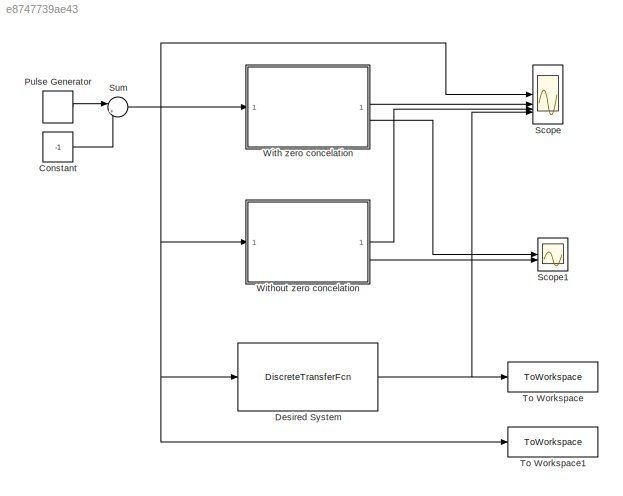
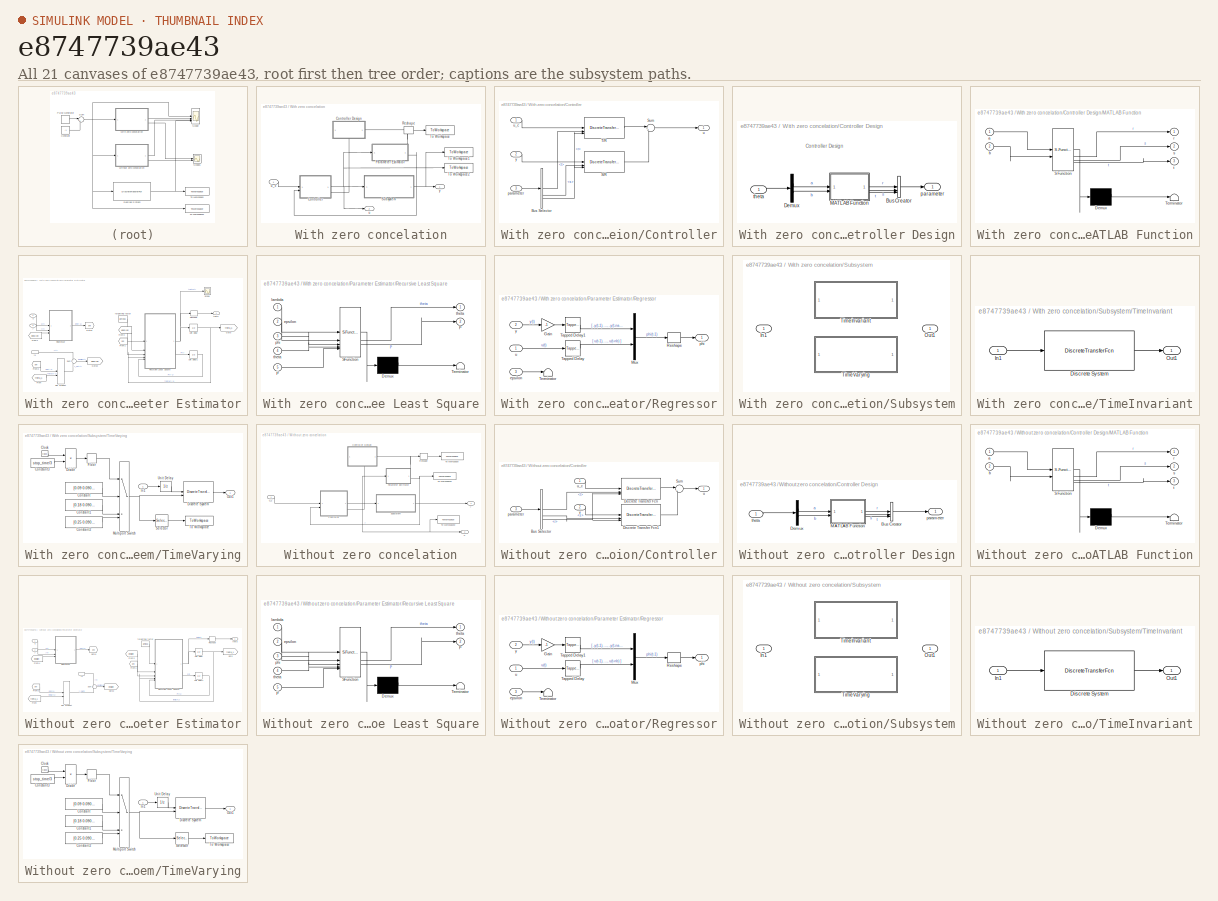
[diagram: thumbnail index - all 21 canvases of the model, root first then tree order]
MODEL slx_e8747739ae43
KIND model
CONFIG AbsTol = auto
CONFIG EnableMultiTasking = off
CONFIG FixedStep = sample_time
CONFIG MaxStep = auto
CONFIG MinStep = auto
CONFIG RelTol = 1e-3
CONFIG SampleTimeConstraint = Unconstrained
CONFIG SolverName = FixedStepAuto
CONFIG StartTime = 0.0
CONFIG StopTime = stop_time
BLOCK [Constant] Constant
  Value = -1
BLOCK [DiscreteTransferFcn] Desired System
  Denominator = [1 -1.3205 0.4966]
  InputPortMap = u0
  Numerator = [0.1761 0]
  SampleTime = sample_time
  a0EqualsOne = on
BLOCK [DiscretePulseGenerator] Pulse Generator
  Amplitude = 2
  Period = 50
  PulseType = Time based
  PulseWidth = 50
BLOCK [Scope] Scope
  Floating = off
  NumInputPorts = 4
  ScopeSpecificationString = Simulink.scopes.TimeScopeBlockCfg('CurrentConfiguration', extmgr.ConfigurationSet(extmgr.Configuration('Core','General UI',true),extmgr.Configuration('Core','Source UI',true),extmgr.Configuration('Sources','WiredSimulink',true),extmgr.Configuration('Visuals','Time Domain',true,'SerializedDisplays',{struct('MinYLimReal','-11.43055','MaxYLimReal','16.72054','YLabelReal','','MinYLimMag','0.00000','Ma...<+1562ch>
BLOCK [Scope] Scope1
  Floating = off
  NumInputPorts = 2
  ScopeSpecificationString = Simulink.scopes.TimeScopeBlockCfg('CurrentConfiguration', extmgr.ConfigurationSet(extmgr.Configuration('Core','General UI',true),extmgr.Configuration('Core','Source UI',true),extmgr.Configuration('Sources','WiredSimulink',true,'DataLoggingVariableName','ScopeData1'),extmgr.Configuration('Visuals','Time Domain',true,'SerializedDisplays',{struct('MinYLimReal','-13.54269','MaxYLimReal','10.08366','YL...<+2119ch>
BLOCK [Sum] Sum
  Inputs = |++
BLOCK [ToWorkspace] To Workspace
  FixptAsFi = on
  MaxDataPoints = inf
  SampleTime = -1
  SaveFormat = Timeseries
  VariableName = Yd
BLOCK [ToWorkspace] To Workspace1
  FixptAsFi = on
  MaxDataPoints = inf
  SampleTime = -1
  SaveFormat = Timeseries
  VariableName = Uc
BLOCK [SubSystem] With zero concelation
BLOCK [SubSystem] With zero concelation/Controller
  PortSchema = {"entries":[{"content":{"sides":[{"content":{"connectorIds":["In1","In2"]},"type":"ConnectorPlacement.EquallySpacedRectSide","uuid":"de166d03-2574-4be9-91e3-f68e474131a4"},{"content":{"connectorIds":["Out1"],"side":"RIGHT"},"type":"ConnectorPlacement.EquallySpacedRectSide","uuid":"3d5de88b-6c54-47ab-9bd7-fa8a92892563"},{"content":{"connectorIds":["In3"],"side":"TOP"},"type":"ConnectorPlacement.Equ...<+251ch>
BLOCK [SubSystem] With zero concelation/Controller Design
  PortSchema = {"entries":[{"content":{"sides":[{"content":{"connectorIds":["Out1"]},"type":"ConnectorPlacement.EquallySpacedRectSide","uuid":"53e8d639-ecea-4436-a4b4-423671f8abf5"},{"content":{"connectorIds":["In1"],"side":"RIGHT"},"type":"ConnectorPlacement.EquallySpacedRectSide","uuid":"db5d5234-b438-48d2-9c76-1224fbffd4fc"},{"content":{"side":"TOP"},"type":"ConnectorPlacement.EquallySpacedRectSide","uuid":"4...<+222ch>
BLOCK [BusCreator] With zero concelation/Controller Design/Bus Creator
  DisplayOption = bar
  InheritFromInputs = on
  Inputs = r,s,t
BLOCK [Demux] With zero concelation/Controller Design/Demux
  Outputs = [n_a, n_b]
BLOCK [SubSystem] With zero concelation/Controller Design/MATLAB Function
  ErrorFcn = Stateflow.Translate.translate
  LibrarySourceBlock = simulink/User-Defined\nFunctions/MATLAB Function
  PermitHierarchicalResolution = ExplicitOnly
  SFBlockType = MATLAB Function
  TreatAsAtomicUnit = on
BLOCK [Demux] With zero concelation/Controller Design/MATLAB Function/ Demux 
  Outputs = 1
BLOCK [S-Function] With zero concelation/Controller Design/MATLAB Function/ SFunction 
  EnableBusSupport = on
  FunctionName = sf_sfun
  PortCounts = [2 4]
  SFcnIsStateOwnerBlock = off
  SFunctionDeploymentMode = off
  Tag = Stateflow S-Function 2
BLOCK [Terminator] With zero concelation/Controller Design/MATLAB Function/ Terminator 
BLOCK [Inport] With zero concelation/Controller Design/MATLAB Function/a
BLOCK [Inport] With zero concelation/Controller Design/MATLAB Function/b
  Port = 2
BLOCK [Outport] With zero concelation/Controller Design/MATLAB Function/r
BLOCK [Outport] With zero concelation/Controller Design/MATLAB Function/s
  Port = 2
BLOCK [Outport] With zero concelation/Controller Design/MATLAB Function/t
  Port = 3
BLOCK [Outport] With zero concelation/Controller Design/parameter
BLOCK [Inport] With zero concelation/Controller Design/theta
BLOCK [BusSelector] With zero concelation/Controller/Bus Selector
  OutputSignals = t,s,r
BLOCK [DiscreteTransferFcn] With zero concelation/Controller/S//R
  DenominatorSource = Input port
  InputPortMap = u0,p1,p3
  NumeratorSource = Input port
  SampleTime = sample_time
  a0EqualsOne = on
BLOCK [Sum] With zero concelation/Controller/Sum
  Inputs = |+-
BLOCK [DiscreteTransferFcn] With zero concelation/Controller/T//R
  DenominatorSource = Input port
  InputPortMap = u0,p1,p3
  NumeratorSource = Input port
  SampleTime = sample_time
  a0EqualsOne = on
BLOCK [Inport] With zero concelation/Controller/parameter
  Port = 3
BLOCK [Outport] With zero concelation/Controller/u
BLOCK [Inport] With zero concelation/Controller/u_c
BLOCK [Inport] With zero concelation/Controller/y
  Port = 2
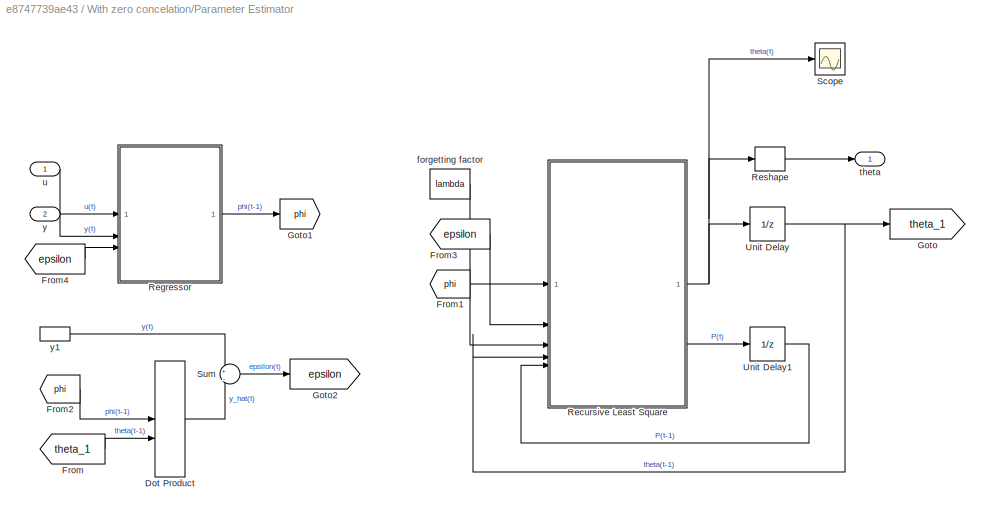
BLOCK [SubSystem] With zero concelation/Parameter Estimator
  PortSchema = {"entries":[{"content":{"sides":[{"content":{"connectorIds":["In1"]},"type":"ConnectorPlacement.EquallySpacedRectSide","uuid":"de166d03-2574-4be9-91e3-f68e474131a4"},{"content":{"connectorIds":["In2"],"side":"RIGHT"},"type":"ConnectorPlacement.EquallySpacedRectSide","uuid":"3d5de88b-6c54-47ab-9bd7-fa8a92892563"},{"content":{"connectorIds":["Out1"],"side":"TOP"},"type":"ConnectorPlacement.EquallySp...<+245ch>
BLOCK [DotProduct] With zero concelation/Parameter Estimator/Dot Product
  OutDataTypeStr = Inherit: Inherit via internal rule
BLOCK [From] With zero concelation/Parameter Estimator/From
  GotoTag = theta_1
BLOCK [From] With zero concelation/Parameter Estimator/From1
  GotoTag = phi
BLOCK [From] With zero concelation/Parameter Estimator/From2
  GotoTag = phi
BLOCK [From] With zero concelation/Parameter Estimator/From3
  GotoTag = epsilon
BLOCK [From] With zero concelation/Parameter Estimator/From4
  GotoTag = epsilon
BLOCK [Goto] With zero concelation/Parameter Estimator/Goto
  GotoTag = theta_1
BLOCK [Goto] With zero concelation/Parameter Estimator/Goto1
  GotoTag = phi
BLOCK [Goto] With zero concelation/Parameter Estimator/Goto2
  GotoTag = epsilon
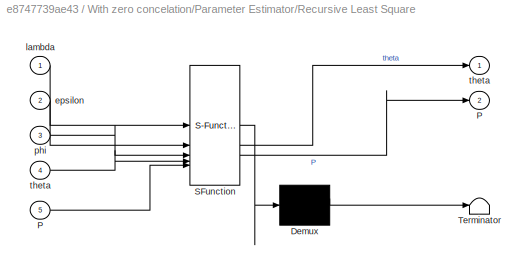
BLOCK [SubSystem] With zero concelation/Parameter Estimator/Recursive Least Square
  ErrorFcn = Stateflow.Translate.translate
  LibrarySourceBlock = simulink/User-Defined\nFunctions/MATLAB Function
  PermitHierarchicalResolution = ExplicitOnly
  SFBlockType = MATLAB Function
  TreatAsAtomicUnit = on
  VariantControl = (default)
BLOCK [Demux] With zero concelation/Parameter Estimator/Recursive Least Square/ Demux 
  Outputs = 1
BLOCK [S-Function] With zero concelation/Parameter Estimator/Recursive Least Square/ SFunction 
  EnableBusSupport = on
  FunctionName = sf_sfun
  Parameters = n
  PortCounts = [5 3]
  SFcnIsStateOwnerBlock = off
  SFunctionDeploymentMode = off
  Tag = Stateflow S-Function 1
BLOCK [Terminator] With zero concelation/Parameter Estimator/Recursive Least Square/ Terminator 
BLOCK [Outport] With zero concelation/Parameter Estimator/Recursive Least Square/P
  Port = 2
BLOCK [Inport] With zero concelation/Parameter Estimator/Recursive Least Square/P 
  Port = 5
BLOCK [Inport] With zero concelation/Parameter Estimator/Recursive Least Square/epsilon
  Port = 2
BLOCK [Inport] With zero concelation/Parameter Estimator/Recursive Least Square/lambda
BLOCK [Inport] With zero concelation/Parameter Estimator/Recursive Least Square/phi
  Port = 3
BLOCK [Outport] With zero concelation/Parameter Estimator/Recursive Least Square/theta
BLOCK [Inport] With zero concelation/Parameter Estimator/Recursive Least Square/theta 
  Port = 4
BLOCK [SubSystem] With zero concelation/Parameter Estimator/Regressor
  VariantControl = (default)
BLOCK [Gain] With zero concelation/Parameter Estimator/Regressor/Gain
  Gain = -1
BLOCK [Mux] With zero concelation/Parameter Estimator/Regressor/Mux
  DisplayOption = bar
  Inputs = 2
BLOCK [Reshape] With zero concelation/Parameter Estimator/Regressor/Reshape
  OutputDimensionality = Column vector (2-D)
BLOCK [Reference] With zero concelation/Parameter Estimator/Regressor/Tapped Delay  REF=simulink/Discrete/Tapped Delay
  SourceBlock = simulink/Discrete/Tapped Delay
  SourceType = Tapped Delay Line
BLOCK [Reference] With zero concelation/Parameter Estimator/Regressor/Tapped Delay1  REF=simulink/Discrete/Tapped Delay
  SourceBlock = simulink/Discrete/Tapped Delay
  SourceType = Tapped Delay Line
BLOCK [Terminator] With zero concelation/Parameter Estimator/Regressor/Terminator
BLOCK [Inport] With zero concelation/Parameter Estimator/Regressor/epsilon
  Port = 3
BLOCK [Outport] With zero concelation/Parameter Estimator/Regressor/phi
BLOCK [Inport] With zero concelation/Parameter Estimator/Regressor/u
BLOCK [Inport] With zero concelation/Parameter Estimator/Regressor/y
  Port = 2
BLOCK [Reshape] With zero concelation/Parameter Estimator/Reshape
  OutputDimensionality = Row vector (2-D)
BLOCK [Scope] With zero concelation/Parameter Estimator/Scope
  Floating = off
  NumInputPorts = 1
  ScopeSpecificationString = Simulink.scopes.TimeScopeBlockCfg('CurrentConfiguration', extmgr.ConfigurationSet(extmgr.Configuration('Core','General UI',true),extmgr.Configuration('Core','Source UI',true),extmgr.Configuration('Sources','WiredSimulink',true,'DataLoggingVariableName','ScopeData1'),extmgr.Configuration('Visuals','Time Domain',true,'SerializedDisplays',{struct('MinYLimReal','-1.88318','MaxYLimReal','0.88438','YLab...<+1543ch>
BLOCK [Sum] With zero concelation/Parameter Estimator/Sum
  Inputs = +|-
BLOCK [UnitDelay] With zero concelation/Parameter Estimator/Unit Delay
  HasFrameUpgradeWarning = on
  InitialCondition = theta0
  SampleTime = sample_time
BLOCK [UnitDelay] With zero concelation/Parameter Estimator/Unit Delay1
  HasFrameUpgradeWarning = on
  InitialCondition = P0
  SampleTime = sample_time
BLOCK [Constant] With zero concelation/Parameter Estimator/forgetting factor
  Value = lambda
BLOCK [Outport] With zero concelation/Parameter Estimator/theta
BLOCK [Inport] With zero concelation/Parameter Estimator/u
BLOCK [Inport] With zero concelation/Parameter Estimator/y
  Port = 2
BLOCK [InportShadow] With zero concelation/Parameter Estimator/y1
  Port = 2
BLOCK [Reshape] With zero concelation/Reshape
BLOCK [SubSystem] With zero concelation/Subsystem
  LabelModeActiveChoice = Choice_1
  Variant = on
  VariantControl = Choice
  VariantControlMode = label
BLOCK [Inport] With zero concelation/Subsystem/In1
BLOCK [Outport] With zero concelation/Subsystem/Out1
BLOCK [SubSystem] With zero concelation/Subsystem/TimeInvariant
  VariantControl = Choice
BLOCK [DiscreteTransferFcn] With zero concelation/Subsystem/TimeInvariant/Discrete System
  Denominator = [1 -1.6065 0.6065]
  InputPortMap = u0
  Numerator = [0 0.1065 0.0902]
  SampleTime = sample_time
  a0EqualsOne = on
BLOCK [Inport] With zero concelation/Subsystem/TimeInvariant/In1
BLOCK [Outport] With zero concelation/Subsystem/TimeInvariant/Out1
BLOCK [SubSystem] With zero concelation/Subsystem/TimeVarying
  VariantControl = Choice_1
BLOCK [Clock] With zero concelation/Subsystem/TimeVarying/Clock
BLOCK [Constant] With zero concelation/Subsystem/TimeVarying/Constant
  Value = [0.09 0.0902 0]
BLOCK [Constant] With zero concelation/Subsystem/TimeVarying/Constant1
  Value = [0.18 0.0902 0]
BLOCK [Constant] With zero concelation/Subsystem/TimeVarying/Constant2
  Value = [0.25 0.0902 0]
BLOCK [Constant] With zero concelation/Subsystem/TimeVarying/Constant3
  Value = stop_time/3
BLOCK [DiscreteTransferFcn] With zero concelation/Subsystem/TimeVarying/Discrete System
  Denominator = [1 -1.6065 0.6065]
  InputPortMap = u0,p1
  Numerator = [0 0.1065 0.0902]
  NumeratorSource = Input port
  SampleTime = sample_time
  a0EqualsOne = on
BLOCK [Product] With zero concelation/Subsystem/TimeVarying/Divide
  Inputs = */
BLOCK [Rounding] With zero concelation/Subsystem/TimeVarying/Floor
BLOCK [Inport] With zero concelation/Subsystem/TimeVarying/In1
BLOCK [MultiPortSwitch] With zero concelation/Subsystem/TimeVarying/Multiport Switch
  DataPortOrder = Zero-based contiguous
  DiagnosticForDefault = None
  InputSameDT = off
  SaturateOnIntegerOverflow = off
  zeroidx = on
BLOCK [Outport] With zero concelation/Subsystem/TimeVarying/Out1
BLOCK [Selector] With zero concelation/Subsystem/TimeVarying/Selector
  IndexOptions = Index vector (dialog)
  Indices = [1]
  InputPortWidth = 3
  OutputSizes = 1
BLOCK [ToWorkspace] With zero concelation/Subsystem/TimeVarying/To Workspace
  FixptAsFi = on
  MaxDataPoints = inf
  SampleTime = -1
  SaveFormat = Timeseries
  VariableName = b1
BLOCK [UnitDelay] With zero concelation/Subsystem/TimeVarying/Unit Delay
  HasFrameUpgradeWarning = on
  SampleTime = sample_time
BLOCK [ToWorkspace] With zero concelation/To Workspace
  FixptAsFi = on
  MaxDataPoints = inf
  SampleTime = -1
  SaveFormat = Timeseries
  VariableName = Theta1
BLOCK [ToWorkspace] With zero concelation/To Workspace1
  FixptAsFi = on
  MaxDataPoints = inf
  SampleTime = -1
  SaveFormat = Timeseries
  VariableName = Y1
BLOCK [ToWorkspace] With zero concelation/To Workspace2
  FixptAsFi = on
  MaxDataPoints = inf
  SampleTime = -1
  SaveFormat = Timeseries
  VariableName = U1
BLOCK [Outport] With zero concelation/u
  Port = 2
BLOCK [Inport] With zero concelation/u_c
BLOCK [Outport] With zero concelation/y
BLOCK [SubSystem] Without zero concelation
BLOCK [SubSystem] Without zero concelation/Controller
  PortSchema = {"entries":[{"content":{"sides":[{"content":{"connectorIds":["In1","In2"]},"type":"ConnectorPlacement.EquallySpacedRectSide","uuid":"de166d03-2574-4be9-91e3-f68e474131a4"},{"content":{"connectorIds":["Out1"],"side":"RIGHT"},"type":"ConnectorPlacement.EquallySpacedRectSide","uuid":"3d5de88b-6c54-47ab-9bd7-fa8a92892563"},{"content":{"connectorIds":["In3"],"side":"TOP"},"type":"ConnectorPlacement.Equ...<+251ch>
BLOCK [SubSystem] Without zero concelation/Controller Design
  PortSchema = {"entries":[{"content":{"sides":[{"content":{"connectorIds":["Out1"]},"type":"ConnectorPlacement.EquallySpacedRectSide","uuid":"53e8d639-ecea-4436-a4b4-423671f8abf5"},{"content":{"connectorIds":["In1"],"side":"RIGHT"},"type":"ConnectorPlacement.EquallySpacedRectSide","uuid":"db5d5234-b438-48d2-9c76-1224fbffd4fc"},{"content":{"side":"TOP"},"type":"ConnectorPlacement.EquallySpacedRectSide","uuid":"4...<+222ch>
BLOCK [BusCreator] Without zero concelation/Controller Design/Bus Creator
  DisplayOption = bar
  InheritFromInputs = on
  Inputs = r,s,t
BLOCK [Demux] Without zero concelation/Controller Design/Demux
  Outputs = [n_a, n_b]
BLOCK [SubSystem] Without zero concelation/Controller Design/MATLAB Function
  ErrorFcn = Stateflow.Translate.translate
  LibrarySourceBlock = simulink/User-Defined\nFunctions/MATLAB Function
  PermitHierarchicalResolution = ExplicitOnly
  SFBlockType = MATLAB Function
  TreatAsAtomicUnit = on
BLOCK [Demux] Without zero concelation/Controller Design/MATLAB Function/ Demux 
  Outputs = 1
BLOCK [S-Function] Without zero concelation/Controller Design/MATLAB Function/ SFunction 
  EnableBusSupport = on
  FunctionName = sf_sfun
  PortCounts = [2 4]
  SFcnIsStateOwnerBlock = off
  SFunctionDeploymentMode = off
  Tag = Stateflow S-Function 3
BLOCK [Terminator] Without zero concelation/Controller Design/MATLAB Function/ Terminator 
BLOCK [Inport] Without zero concelation/Controller Design/MATLAB Function/a
BLOCK [Inport] Without zero concelation/Controller Design/MATLAB Function/b
  Port = 2
BLOCK [Outport] Without zero concelation/Controller Design/MATLAB Function/r
BLOCK [Outport] Without zero concelation/Controller Design/MATLAB Function/s
  Port = 2
BLOCK [Outport] Without zero concelation/Controller Design/MATLAB Function/t
  Port = 3
BLOCK [Outport] Without zero concelation/Controller Design/parameter
BLOCK [Inport] Without zero concelation/Controller Design/theta
BLOCK [BusSelector] Without zero concelation/Controller/Bus Selector
  OutputSignals = t,s,r
BLOCK [DiscreteTransferFcn] Without zero concelation/Controller/Discrete Transfer Fcn
  DenominatorSource = Input port
  InputPortMap = u0,p1,p3
  NumeratorSource = Input port
  SampleTime = sample_time
  a0EqualsOne = on
BLOCK [DiscreteTransferFcn] Without zero concelation/Controller/Discrete Transfer Fcn1
  DenominatorSource = Input port
  InputPortMap = u0,p1,p3
  NumeratorSource = Input port
  SampleTime = sample_time
  a0EqualsOne = on
BLOCK [Sum] Without zero concelation/Controller/Sum
  Inputs = |+-
BLOCK [Inport] Without zero concelation/Controller/parameter
  Port = 3
BLOCK [Outport] Without zero concelation/Controller/u
BLOCK [Inport] Without zero concelation/Controller/u_c
BLOCK [Inport] Without zero concelation/Controller/y
  Port = 2
BLOCK [SubSystem] Without zero concelation/Parameter Estimator
  PortSchema = {"entries":[{"content":{"sides":[{"content":{"connectorIds":["In1"]},"type":"ConnectorPlacement.EquallySpacedRectSide","uuid":"de166d03-2574-4be9-91e3-f68e474131a4"},{"content":{"connectorIds":["In2"],"side":"RIGHT"},"type":"ConnectorPlacement.EquallySpacedRectSide","uuid":"3d5de88b-6c54-47ab-9bd7-fa8a92892563"},{"content":{"connectorIds":["Out1"],"side":"TOP"},"type":"ConnectorPlacement.EquallySp...<+245ch>
BLOCK [DotProduct] Without zero concelation/Parameter Estimator/Dot Product
  OutDataTypeStr = Inherit: Inherit via internal rule
BLOCK [From] Without zero concelation/Parameter Estimator/From
  GotoTag = theta_1
BLOCK [From] Without zero concelation/Parameter Estimator/From1
  GotoTag = phi
BLOCK [From] Without zero concelation/Parameter Estimator/From2
  GotoTag = phi
BLOCK [From] Without zero concelation/Parameter Estimator/From3
  GotoTag = epsilon
BLOCK [From] Without zero concelation/Parameter Estimator/From4
  GotoTag = epsilon
BLOCK [Goto] Without zero concelation/Parameter Estimator/Goto
  GotoTag = theta_1
BLOCK [Goto] Without zero concelation/Parameter Estimator/Goto1
  GotoTag = phi
BLOCK [Goto] Without zero concelation/Parameter Estimator/Goto2
  GotoTag = epsilon
BLOCK [SubSystem] Without zero concelation/Parameter Estimator/Recursive Least Square
  ErrorFcn = Stateflow.Translate.translate
  LibrarySourceBlock = simulink/User-Defined\nFunctions/MATLAB Function
  PermitHierarchicalResolution = ExplicitOnly
  SFBlockType = MATLAB Function
  TreatAsAtomicUnit = on
  VariantControl = (default)
BLOCK [Demux] Without zero concelation/Parameter Estimator/Recursive Least Square/ Demux 
  Outputs = 1
BLOCK [S-Function] Without zero concelation/Parameter Estimator/Recursive Least Square/ SFunction 
  EnableBusSupport = on
  FunctionName = sf_sfun
  Parameters = n
  PortCounts = [5 3]
  SFcnIsStateOwnerBlock = off
  SFunctionDeploymentMode = off
  Tag = Stateflow S-Function 4
BLOCK [Terminator] Without zero concelation/Parameter Estimator/Recursive Least Square/ Terminator 
BLOCK [Outport] Without zero concelation/Parameter Estimator/Recursive Least Square/P
  Port = 2
BLOCK [Inport] Without zero concelation/Parameter Estimator/Recursive Least Square/P 
  Port = 5
BLOCK [Inport] Without zero concelation/Parameter Estimator/Recursive Least Square/epsilon
  Port = 2
BLOCK [Inport] Without zero concelation/Parameter Estimator/Recursive Least Square/lambda
BLOCK [Inport] Without zero concelation/Parameter Estimator/Recursive Least Square/phi
  Port = 3
BLOCK [Outport] Without zero concelation/Parameter Estimator/Recursive Least Square/theta
BLOCK [Inport] Without zero concelation/Parameter Estimator/Recursive Least Square/theta 
  Port = 4
BLOCK [SubSystem] Without zero concelation/Parameter Estimator/Regressor
  VariantControl = (default)
BLOCK [Gain] Without zero concelation/Parameter Estimator/Regressor/Gain
  Gain = -1
BLOCK [Mux] Without zero concelation/Parameter Estimator/Regressor/Mux
  DisplayOption = bar
  Inputs = 2
BLOCK [Reshape] Without zero concelation/Parameter Estimator/Regressor/Reshape
  OutputDimensionality = Column vector (2-D)
BLOCK [Reference] Without zero concelation/Parameter Estimator/Regressor/Tapped Delay  REF=simulink/Discrete/Tapped Delay
  SourceBlock = simulink/Discrete/Tapped Delay
  SourceType = Tapped Delay Line
BLOCK [Reference] Without zero concelation/Parameter Estimator/Regressor/Tapped Delay1  REF=simulink/Discrete/Tapped Delay
  SourceBlock = simulink/Discrete/Tapped Delay
  SourceType = Tapped Delay Line
BLOCK [Terminator] Without zero concelation/Parameter Estimator/Regressor/Terminator
BLOCK [Inport] Without zero concelation/Parameter Estimator/Regressor/epsilon
  Port = 3
BLOCK [Outport] Without zero concelation/Parameter Estimator/Regressor/phi
BLOCK [Inport] Without zero concelation/Parameter Estimator/Regressor/u
BLOCK [Inport] Without zero concelation/Parameter Estimator/Regressor/y
  Port = 2
BLOCK [Reshape] Without zero concelation/Parameter Estimator/Reshape
  OutputDimensionality = Row vector (2-D)
BLOCK [Sum] Without zero concelation/Parameter Estimator/Sum
  Inputs = +|-
BLOCK [UnitDelay] Without zero concelation/Parameter Estimator/Unit Delay
  HasFrameUpgradeWarning = on
  InitialCondition = theta0
  SampleTime = sample_time
BLOCK [UnitDelay] Without zero concelation/Parameter Estimator/Unit Delay1
  HasFrameUpgradeWarning = on
  InitialCondition = P0
  SampleTime = sample_time
BLOCK [Constant] Without zero concelation/Parameter Estimator/forgetting factor
  Value = lambda
BLOCK [Outport] Without zero concelation/Parameter Estimator/theta
BLOCK [Inport] Without zero concelation/Parameter Estimator/u
BLOCK [Inport] Without zero concelation/Parameter Estimator/y
  Port = 2
BLOCK [InportShadow] Without zero concelation/Parameter Estimator/y1
  Port = 2
BLOCK [Reshape] Without zero concelation/Reshape
BLOCK [SubSystem] Without zero concelation/Subsystem
  LabelModeActiveChoice = Choice_1
  Variant = on
  VariantControl = Choice
  VariantControlMode = label
BLOCK [Inport] Without zero concelation/Subsystem/In1
BLOCK [Outport] Without zero concelation/Subsystem/Out1
BLOCK [SubSystem] Without zero concelation/Subsystem/TimeInvariant
  VariantControl = Choice
BLOCK [DiscreteTransferFcn] Without zero concelation/Subsystem/TimeInvariant/Discrete System
  Denominator = [1 -1.6065 0.6065]
  InputPortMap = u0
  Numerator = [0 0.1065 0.0902]
  SampleTime = sample_time
  a0EqualsOne = on
BLOCK [Inport] Without zero concelation/Subsystem/TimeInvariant/In1
BLOCK [Outport] Without zero concelation/Subsystem/TimeInvariant/Out1
BLOCK [SubSystem] Without zero concelation/Subsystem/TimeVarying
  VariantControl = Choice_1
BLOCK [Clock] Without zero concelation/Subsystem/TimeVarying/Clock
BLOCK [Constant] Without zero concelation/Subsystem/TimeVarying/Constant
  Value = [0.09 0.0902 0]
BLOCK [Constant] Without zero concelation/Subsystem/TimeVarying/Constant1
  Value = [0.18 0.0902 0]
BLOCK [Constant] Without zero concelation/Subsystem/TimeVarying/Constant2
  Value = [0.25 0.0902 0]
BLOCK [Constant] Without zero concelation/Subsystem/TimeVarying/Constant3
  Value = stop_time/3
BLOCK [DiscreteTransferFcn] Without zero concelation/Subsystem/TimeVarying/Discrete System
  Denominator = [1 -1.6065 0.6065]
  InputPortMap = u0,p1
  Numerator = [0 0.1065 0.0902]
  NumeratorSource = Input port
  SampleTime = sample_time
  a0EqualsOne = on
BLOCK [Product] Without zero concelation/Subsystem/TimeVarying/Divide
  Inputs = */
BLOCK [Rounding] Without zero concelation/Subsystem/TimeVarying/Floor
BLOCK [Inport] Without zero concelation/Subsystem/TimeVarying/In1
BLOCK [MultiPortSwitch] Without zero concelation/Subsystem/TimeVarying/Multiport Switch
  DataPortOrder = Zero-based contiguous
  DiagnosticForDefault = None
  InputSameDT = off
  SaturateOnIntegerOverflow = off
  zeroidx = on
BLOCK [Outport] Without zero concelation/Subsystem/TimeVarying/Out1
BLOCK [Selector] Without zero concelation/Subsystem/TimeVarying/Selector
  IndexOptions = Index vector (dialog)
  Indices = [1]
  InputPortWidth = 3
  OutputSizes = 1
BLOCK [ToWorkspace] Without zero concelation/Subsystem/TimeVarying/To Workspace
  FixptAsFi = on
  MaxDataPoints = inf
  SampleTime = -1
  SaveFormat = Timeseries
  VariableName = b2
BLOCK [UnitDelay] Without zero concelation/Subsystem/TimeVarying/Unit Delay
  HasFrameUpgradeWarning = on
  SampleTime = sample_time
BLOCK [ToWorkspace] Without zero concelation/To Workspace
  FixptAsFi = on
  MaxDataPoints = inf
  SampleTime = -1
  SaveFormat = Timeseries
  VariableName = Theta2
BLOCK [ToWorkspace] Without zero concelation/To Workspace1
  FixptAsFi = on
  MaxDataPoints = inf
  SampleTime = -1
  SaveFormat = Timeseries
  VariableName = Y2
BLOCK [ToWorkspace] Without zero concelation/To Workspace2
  FixptAsFi = on
  MaxDataPoints = inf
  SampleTime = -1
  SaveFormat = Timeseries
  VariableName = U2
BLOCK [Outport] Without zero concelation/u
  Port = 2
BLOCK [Inport] Without zero concelation/u_c
BLOCK [Outport] Without zero concelation/y
ANNOTATION With zero concelation/Controller Design: Controller Design
LINE Constant:1 -> Sum:2
NET Desired System:1 -> Scope:4, To Workspace:1
LINE Pulse Generator:1 -> Sum:1
NET Sum:1 -> Desired System:1, Scope:1, To Workspace1:1, With zero concelation:1, Without zero concelation:1
LINE With zero concelation/Controller Design/Bus Creator:1 -> With zero concelation/Controller Design/parameter:1
LINE With zero concelation/Controller Design/Demux:1 -> With zero concelation/Controller Design/MATLAB Function:1
LINE With zero concelation/Controller Design/Demux:2 -> With zero concelation/Controller Design/MATLAB Function:2
LINE With zero concelation/Controller Design/MATLAB Function:1 -> With zero concelation/Controller Design/Bus Creator:1
LINE With zero concelation/Controller Design/MATLAB Function:2 -> With zero concelation/Controller Design/Bus Creator:2
LINE With zero concelation/Controller Design/MATLAB Function:3 -> With zero concelation/Controller Design/Bus Creator:3
LINE With zero concelation/Controller Design/theta:1 -> With zero concelation/Controller Design/Demux:1
LINE With zero concelation/Controller Design:1 -> With zero concelation/Controller:3
LINE With zero concelation/Controller/Bus Selector:1 -> With zero concelation/Controller/T//R:2
LINE With zero concelation/Controller/Bus Selector:2 -> With zero concelation/Controller/S//R:2
NET With zero concelation/Controller/Bus Selector:3 -> With zero concelation/Controller/S//R:3, With zero concelation/Controller/T//R:3
LINE With zero concelation/Controller/S//R:1 -> With zero concelation/Controller/Sum:2
LINE With zero concelation/Controller/Sum:1 -> With zero concelation/Controller/u:1
LINE With zero concelation/Controller/T//R:1 -> With zero concelation/Controller/Sum:1
LINE With zero concelation/Controller/parameter:1 -> With zero concelation/Controller/Bus Selector:1
LINE With zero concelation/Controller/u_c:1 -> With zero concelation/Controller/T//R:1
LINE With zero concelation/Controller/y:1 -> With zero concelation/Controller/S//R:1
NET With zero concelation/Controller:1 -> With zero concelation/Parameter Estimator:1, With zero concelation/Subsystem:1, With zero concelation/To Workspace2:1, With zero concelation/u:1
LINE With zero concelation/Parameter Estimator/Dot Product:1 -> With zero concelation/Parameter Estimator/Sum:2
LINE With zero concelation/Parameter Estimator/From1:1 -> With zero concelation/Parameter Estimator/Recursive Least Square:3
LINE With zero concelation/Parameter Estimator/From2:1 -> With zero concelation/Parameter Estimator/Dot Product:1
LINE With zero concelation/Parameter Estimator/From3:1 -> With zero concelation/Parameter Estimator/Recursive Least Square:2
LINE With zero concelation/Parameter Estimator/From4:1 -> With zero concelation/Parameter Estimator/Regressor:3
LINE With zero concelation/Parameter Estimator/From:1 -> With zero concelation/Parameter Estimator/Dot Product:2
NET With zero concelation/Parameter Estimator/Recursive Least Square:1 -> With zero concelation/Parameter Estimator/Reshape:1, With zero concelation/Parameter Estimator/Scope:1, With zero concelation/Parameter Estimator/Unit Delay:1
LINE With zero concelation/Parameter Estimator/Recursive Least Square:2 -> With zero concelation/Parameter Estimator/Unit Delay1:1
LINE With zero concelation/Parameter Estimator/Regressor/Gain:1 -> With zero concelation/Parameter Estimator/Regressor/Tapped Delay1:1
LINE With zero concelation/Parameter Estimator/Regressor/Mux:1 -> With zero concelation/Parameter Estimator/Regressor/Reshape:1
LINE With zero concelation/Parameter Estimator/Regressor/Reshape:1 -> With zero concelation/Parameter Estimator/Regressor/phi:1
LINE With zero concelation/Parameter Estimator/Regressor/Tapped Delay1:1 -> With zero concelation/Parameter Estimator/Regressor/Mux:1
LINE With zero concelation/Parameter Estimator/Regressor/Tapped Delay:1 -> With zero concelation/Parameter Estimator/Regressor/Mux:2
LINE With zero concelation/Parameter Estimator/Regressor/epsilon:1 -> With zero concelation/Parameter Estimator/Regressor/Terminator:1
LINE With zero concelation/Parameter Estimator/Regressor/u:1 -> With zero concelation/Parameter Estimator/Regressor/Tapped Delay:1
LINE With zero concelation/Parameter Estimator/Regressor/y:1 -> With zero concelation/Parameter Estimator/Regressor/Gain:1
LINE With zero concelation/Parameter Estimator/Regressor:1 -> With zero concelation/Parameter Estimator/Goto1:1
LINE With zero concelation/Parameter Estimator/Reshape:1 -> With zero concelation/Parameter Estimator/theta:1
LINE With zero concelation/Parameter Estimator/Sum:1 -> With zero concelation/Parameter Estimator/Goto2:1
LINE With zero concelation/Parameter Estimator/Unit Delay1:1 -> With zero concelation/Parameter Estimator/Recursive Least Square:5
NET With zero concelation/Parameter Estimator/Unit Delay:1 -> With zero concelation/Parameter Estimator/Goto:1, With zero concelation/Parameter Estimator/Recursive Least Square:4
LINE With zero concelation/Parameter Estimator/forgetting factor:1 -> With zero concelation/Parameter Estimator/Recursive Least Square:1
LINE With zero concelation/Parameter Estimator/u:1 -> With zero concelation/Parameter Estimator/Regressor:1
LINE With zero concelation/Parameter Estimator/y1:1 -> With zero concelation/Parameter Estimator/Sum:1
LINE With zero concelation/Parameter Estimator/y:1 -> With zero concelation/Parameter Estimator/Regressor:2
NET With zero concelation/Parameter Estimator:1 -> With zero concelation/Controller Design:1, With zero concelation/Reshape:1
LINE With zero concelation/Reshape:1 -> With zero concelation/To Workspace:1
LINE With zero concelation/Subsystem/TimeInvariant/Discrete System:1 -> With zero concelation/Subsystem/TimeInvariant/Out1:1
LINE With zero concelation/Subsystem/TimeInvariant/In1:1 -> With zero concelation/Subsystem/TimeInvariant/Discrete System:1
LINE With zero concelation/Subsystem/TimeVarying/Clock:1 -> With zero concelation/Subsystem/TimeVarying/Divide:1
LINE With zero concelation/Subsystem/TimeVarying/Constant1:1 -> With zero concelation/Subsystem/TimeVarying/Multiport Switch:3
LINE With zero concelation/Subsystem/TimeVarying/Constant2:1 -> With zero concelation/Subsystem/TimeVarying/Multiport Switch:4
LINE With zero concelation/Subsystem/TimeVarying/Constant3:1 -> With zero concelation/Subsystem/TimeVarying/Divide:2
LINE With zero concelation/Subsystem/TimeVarying/Constant:1 -> With zero concelation/Subsystem/TimeVarying/Multiport Switch:2
LINE With zero concelation/Subsystem/TimeVarying/Discrete System:1 -> With zero concelation/Subsystem/TimeVarying/Out1:1
LINE With zero concelation/Subsystem/TimeVarying/Divide:1 -> With zero concelation/Subsystem/TimeVarying/Floor:1
LINE With zero concelation/Subsystem/TimeVarying/Floor:1 -> With zero concelation/Subsystem/TimeVarying/Multiport Switch:1
LINE With zero concelation/Subsystem/TimeVarying/In1:1 -> With zero concelation/Subsystem/TimeVarying/Unit Delay:1
NET With zero concelation/Subsystem/TimeVarying/Multiport Switch:1 -> With zero concelation/Subsystem/TimeVarying/Discrete System:2, With zero concelation/Subsystem/TimeVarying/Selector:1
LINE With zero concelation/Subsystem/TimeVarying/Selector:1 -> With zero concelation/Subsystem/TimeVarying/To Workspace:1
LINE With zero concelation/Subsystem/TimeVarying/Unit Delay:1 -> With zero concelation/Subsystem/TimeVarying/Discrete System:1
NET With zero concelation/Subsystem:1 -> With zero concelation/Controller:2, With zero concelation/Parameter Estimator:2, With zero concelation/To Workspace1:1, With zero concelation/y:1
LINE With zero concelation/u_c:1 -> With zero concelation/Controller:1
LINE With zero concelation:1 -> Scope:2
LINE With zero concelation:2 -> Scope1:1
LINE Without zero concelation/Controller Design/Bus Creator:1 -> Without zero concelation/Controller Design/parameter:1
LINE Without zero concelation/Controller Design/Demux:1 -> Without zero concelation/Controller Design/MATLAB Function:1
LINE Without zero concelation/Controller Design/Demux:2 -> Without zero concelation/Controller Design/MATLAB Function:2
LINE Without zero concelation/Controller Design/MATLAB Function:1 -> Without zero concelation/Controller Design/Bus Creator:1
LINE Without zero concelation/Controller Design/MATLAB Function:2 -> Without zero concelation/Controller Design/Bus Creator:2
LINE Without zero concelation/Controller Design/MATLAB Function:3 -> Without zero concelation/Controller Design/Bus Creator:3
LINE Without zero concelation/Controller Design/theta:1 -> Without zero concelation/Controller Design/Demux:1
LINE Without zero concelation/Controller Design:1 -> Without zero concelation/Controller:3
LINE Without zero concelation/Controller/Bus Selector:1 -> Without zero concelation/Controller/Discrete Transfer Fcn:2
LINE Without zero concelation/Controller/Bus Selector:2 -> Without zero concelation/Controller/Discrete Transfer Fcn1:2
NET Without zero concelation/Controller/Bus Selector:3 -> Without zero concelation/Controller/Discrete Transfer Fcn1:3, Without zero concelation/Controller/Discrete Transfer Fcn:3
LINE Without zero concelation/Controller/Discrete Transfer Fcn1:1 -> Without zero concelation/Controller/Sum:2
LINE Without zero concelation/Controller/Discrete Transfer Fcn:1 -> Without zero concelation/Controller/Sum:1
LINE Without zero concelation/Controller/Sum:1 -> Without zero concelation/Controller/u:1
LINE Without zero concelation/Controller/parameter:1 -> Without zero concelation/Controller/Bus Selector:1
LINE Without zero concelation/Controller/u_c:1 -> Without zero concelation/Controller/Discrete Transfer Fcn:1
LINE Without zero concelation/Controller/y:1 -> Without zero concelation/Controller/Discrete Transfer Fcn1:1
NET Without zero concelation/Controller:1 -> Without zero concelation/Parameter Estimator:1, Without zero concelation/Subsystem:1, Without zero concelation/To Workspace2:1, Without zero concelation/u:1
LINE Without zero concelation/Parameter Estimator/Dot Product:1 -> Without zero concelation/Parameter Estimator/Sum:2
LINE Without zero concelation/Parameter Estimator/From1:1 -> Without zero concelation/Parameter Estimator/Recursive Least Square:3
LINE Without zero concelation/Parameter Estimator/From2:1 -> Without zero concelation/Parameter Estimator/Dot Product:1
LINE Without zero concelation/Parameter Estimator/From3:1 -> Without zero concelation/Parameter Estimator/Recursive Least Square:2
LINE Without zero concelation/Parameter Estimator/From4:1 -> Without zero concelation/Parameter Estimator/Regressor:3
LINE Without zero concelation/Parameter Estimator/From:1 -> Without zero concelation/Parameter Estimator/Dot Product:2
NET Without zero concelation/Parameter Estimator/Recursive Least Square:1 -> Without zero concelation/Parameter Estimator/Reshape:1, Without zero concelation/Parameter Estimator/Unit Delay:1
LINE Without zero concelation/Parameter Estimator/Recursive Least Square:2 -> Without zero concelation/Parameter Estimator/Unit Delay1:1
LINE Without zero concelation/Parameter Estimator/Regressor/Gain:1 -> Without zero concelation/Parameter Estimator/Regressor/Tapped Delay1:1
LINE Without zero concelation/Parameter Estimator/Regressor/Mux:1 -> Without zero concelation/Parameter Estimator/Regressor/Reshape:1
LINE Without zero concelation/Parameter Estimator/Regressor/Reshape:1 -> Without zero concelation/Parameter Estimator/Regressor/phi:1
LINE Without zero concelation/Parameter Estimator/Regressor/Tapped Delay1:1 -> Without zero concelation/Parameter Estimator/Regressor/Mux:1
LINE Without zero concelation/Parameter Estimator/Regressor/Tapped Delay:1 -> Without zero concelation/Parameter Estimator/Regressor/Mux:2
LINE Without zero concelation/Parameter Estimator/Regressor/epsilon:1 -> Without zero concelation/Parameter Estimator/Regressor/Terminator:1
LINE Without zero concelation/Parameter Estimator/Regressor/u:1 -> Without zero concelation/Parameter Estimator/Regressor/Tapped Delay:1
LINE Without zero concelation/Parameter Estimator/Regressor/y:1 -> Without zero concelation/Parameter Estimator/Regressor/Gain:1
LINE Without zero concelation/Parameter Estimator/Regressor:1 -> Without zero concelation/Parameter Estimator/Goto1:1
LINE Without zero concelation/Parameter Estimator/Reshape:1 -> Without zero concelation/Parameter Estimator/theta:1
LINE Without zero concelation/Parameter Estimator/Sum:1 -> Without zero concelation/Parameter Estimator/Goto2:1
LINE Without zero concelation/Parameter Estimator/Unit Delay1:1 -> Without zero concelation/Parameter Estimator/Recursive Least Square:5
NET Without zero concelation/Parameter Estimator/Unit Delay:1 -> Without zero concelation/Parameter Estimator/Goto:1, Without zero concelation/Parameter Estimator/Recursive Least Square:4
LINE Without zero concelation/Parameter Estimator/forgetting factor:1 -> Without zero concelation/Parameter Estimator/Recursive Least Square:1
LINE Without zero concelation/Parameter Estimator/u:1 -> Without zero concelation/Parameter Estimator/Regressor:1
LINE Without zero concelation/Parameter Estimator/y1:1 -> Without zero concelation/Parameter Estimator/Sum:1
LINE Without zero concelation/Parameter Estimator/y:1 -> Without zero concelation/Parameter Estimator/Regressor:2
NET Without zero concelation/Parameter Estimator:1 -> Without zero concelation/Controller Design:1, Without zero concelation/Reshape:1
LINE Without zero concelation/Reshape:1 -> Without zero concelation/To Workspace:1
LINE Without zero concelation/Subsystem/TimeInvariant/Discrete System:1 -> Without zero concelation/Subsystem/TimeInvariant/Out1:1
LINE Without zero concelation/Subsystem/TimeInvariant/In1:1 -> Without zero concelation/Subsystem/TimeInvariant/Discrete System:1
LINE Without zero concelation/Subsystem/TimeVarying/Clock:1 -> Without zero concelation/Subsystem/TimeVarying/Divide:1
LINE Without zero concelation/Subsystem/TimeVarying/Constant1:1 -> Without zero concelation/Subsystem/TimeVarying/Multiport Switch:3
LINE Without zero concelation/Subsystem/TimeVarying/Constant2:1 -> Without zero concelation/Subsystem/TimeVarying/Multiport Switch:4
LINE Without zero concelation/Subsystem/TimeVarying/Constant3:1 -> Without zero concelation/Subsystem/TimeVarying/Divide:2
LINE Without zero concelation/Subsystem/TimeVarying/Constant:1 -> Without zero concelation/Subsystem/TimeVarying/Multiport Switch:2
LINE Without zero concelation/Subsystem/TimeVarying/Discrete System:1 -> Without zero concelation/Subsystem/TimeVarying/Out1:1
LINE Without zero concelation/Subsystem/TimeVarying/Divide:1 -> Without zero concelation/Subsystem/TimeVarying/Floor:1
LINE Without zero concelation/Subsystem/TimeVarying/Floor:1 -> Without zero concelation/Subsystem/TimeVarying/Multiport Switch:1
LINE Without zero concelation/Subsystem/TimeVarying/In1:1 -> Without zero concelation/Subsystem/TimeVarying/Unit Delay:1
NET Without zero concelation/Subsystem/TimeVarying/Multiport Switch:1 -> Without zero concelation/Subsystem/TimeVarying/Discrete System:2, Without zero concelation/Subsystem/TimeVarying/Selector:1
LINE Without zero concelation/Subsystem/TimeVarying/Selector:1 -> Without zero concelation/Subsystem/TimeVarying/To Workspace:1
LINE Without zero concelation/Subsystem/TimeVarying/Unit Delay:1 -> Without zero concelation/Subsystem/TimeVarying/Discrete System:1
NET Without zero concelation/Subsystem:1 -> Without zero concelation/Controller:2, Without zero concelation/Parameter Estimator:2, Without zero concelation/To Workspace1:1, Without zero concelation/y:1
LINE Without zero concelation/u_c:1 -> Without zero concelation/Controller:1
LINE Without zero concelation:1 -> Scope:3
LINE Without zero concelation:2 -> Scope1:2
note: NET lines group one-source signal fan-out (src -> all destinations, sorted); 1:1 wires keep LINE
CHART With zero concelation/Parameter Estimator/Recursive Least Square states=1 transitions=1
  STATE_LABEL 'eML_blk_kernel()'
  STATE_LABEL "SCRIPT:\nfunction [theta, P] = fcn(lambda, epsilon, phi, theta, P, n)\nK = P * phi / (lambda + phi'*P*phi);\nP = (eye(n) - K*phi') * P / lambda;\ntheta = theta + P * phi * epsilon;"
CHART With zero concelation/Controller Design/MATLAB Function states=1 transitions=1
  STATE_LABEL 'eML_blk_kernel()'
  STATE_LABEL 'SCRIPT:\nfunction [r, s, t] = fcn(a, b)\nam = [-1.3205, 0.4966];\nbm = [0.1761, 0];\ns = (am - a)/b(1);\nr = [1, b(2)/b(1)];\nt = [bm(1)/b(1), 0];'
CHART Without zero concelation/Controller Design/MATLAB Function states=1 transitions=1
  STATE_LABEL 'eML_blk_kernel()'
  STATE_LABEL 'SCRIPT:\nfunction [r, s, t] = fcn(a, b)\nam = [-1.3205, 0.4966];\na0 = 0;\nPhi = [\n    1,    b(1), 0;\n    a(1), b(2), b(1);\n    a(2), 0,    b(2)\n    ];\ny = [a0+am(1)-a(1); am(1)*a0+am(2)-a(2); a0*am(2)];\ntheta = pinv(Phi)*y;\nr = [1, theta(1)];\ns = [theta(2), theta(3)];\nbeta = (1 + am(1) + am(2)) / (b(1)+b(2));\nt = [beta beta*a0];'
CHART Without zero concelation/Parameter Estimator/Recursive Least Square states=1 transitions=1
  STATE_LABEL 'eML_blk_kernel()'
  STATE_LABEL "SCRIPT:\nfunction [theta, P] = fcn(lambda, epsilon, phi, theta, P, n)\nK = P * phi / (lambda + phi'*P*phi);\nP = (eye(n) - K*phi') * P / lambda;\ntheta = theta + P * phi * epsilon;"
CHART  states=0 transitions=0
CHART  states=0 transitions=0
CHART  states=0 transitions=0
CHART  states=0 transitions=0
